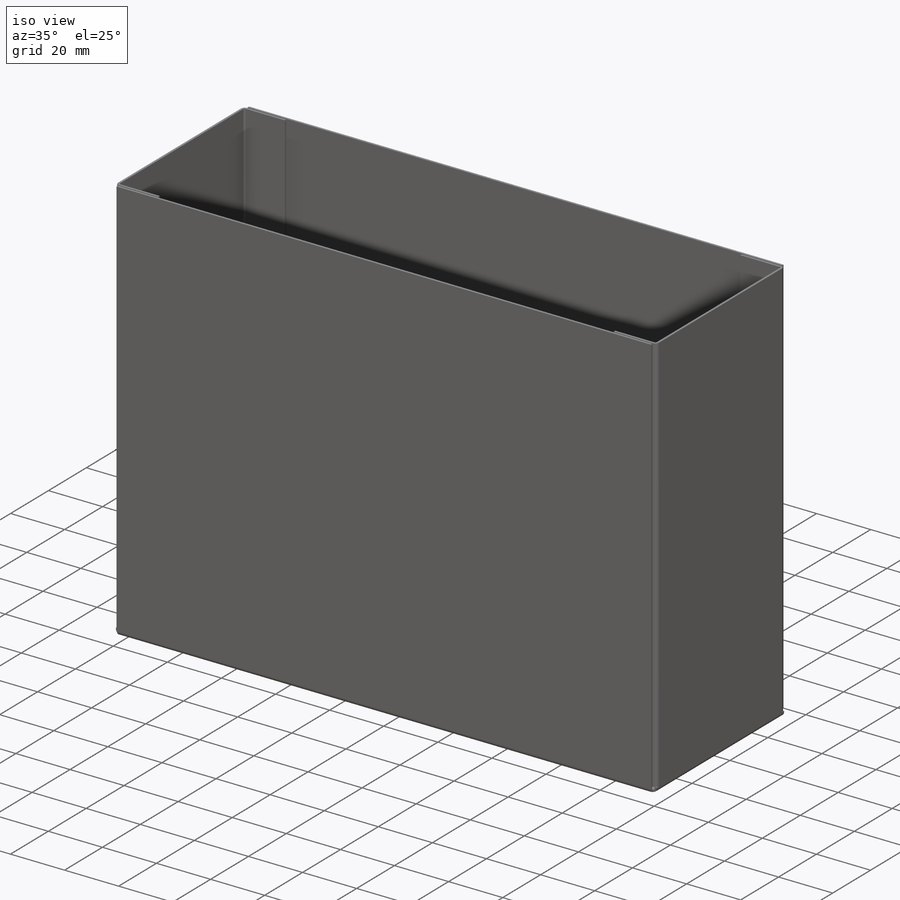
[diagram: iso view]
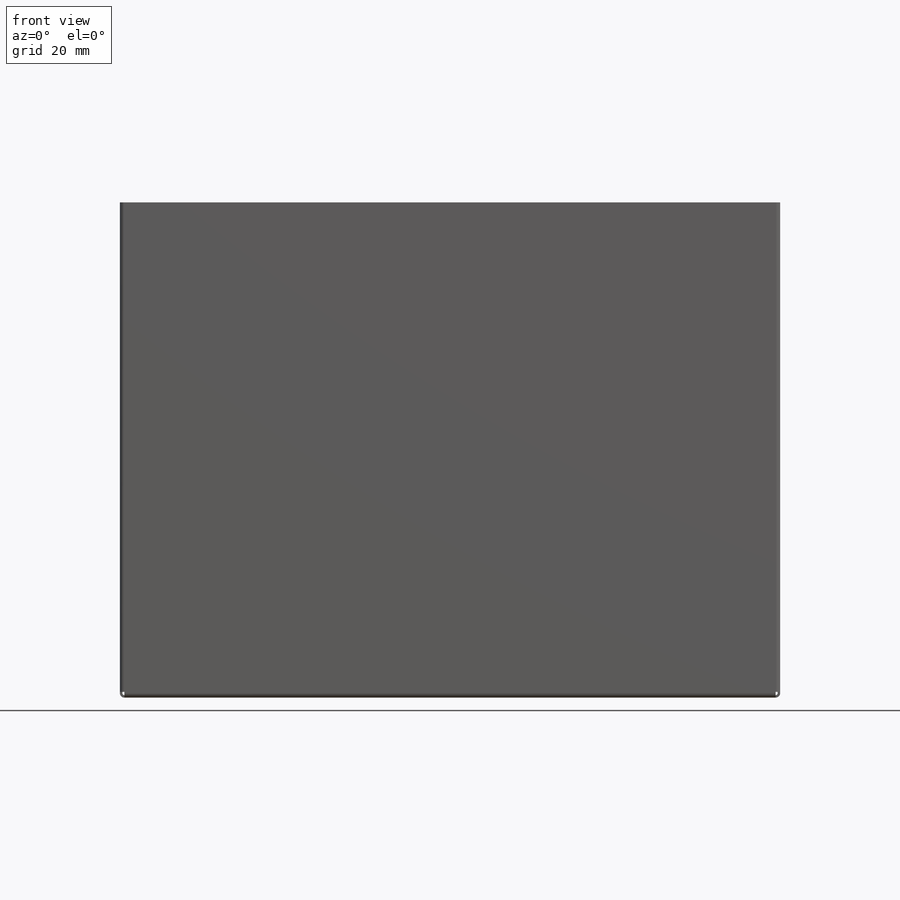
[diagram: front view]
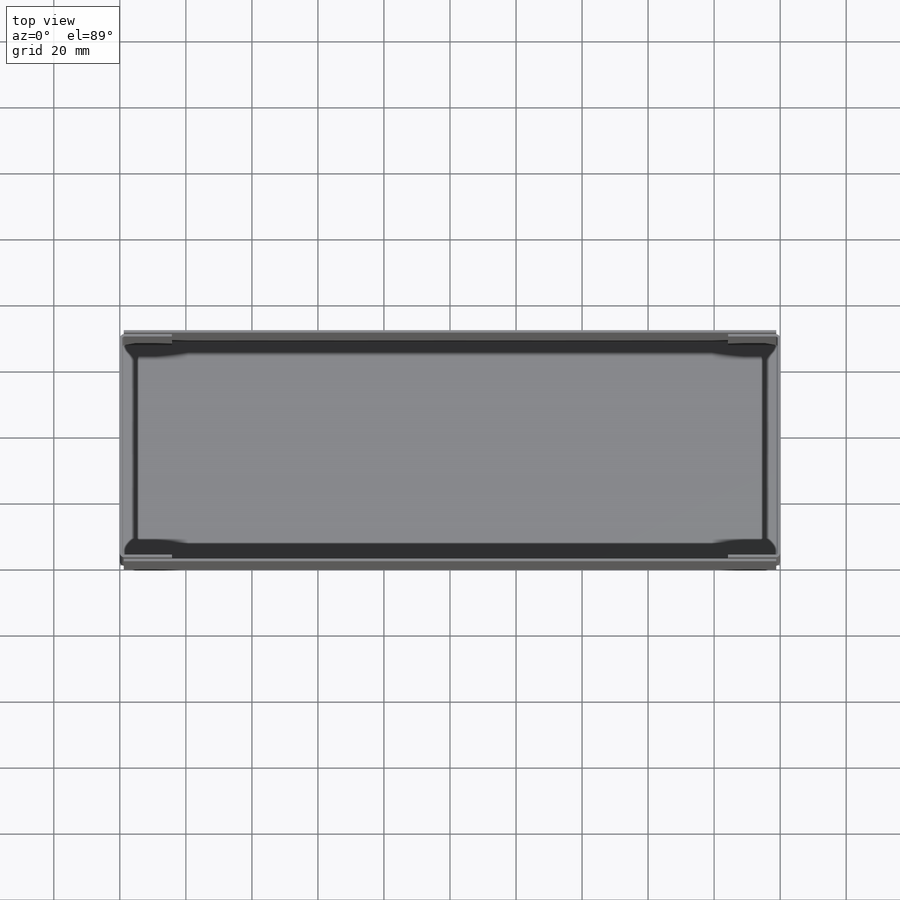
[diagram: top view]
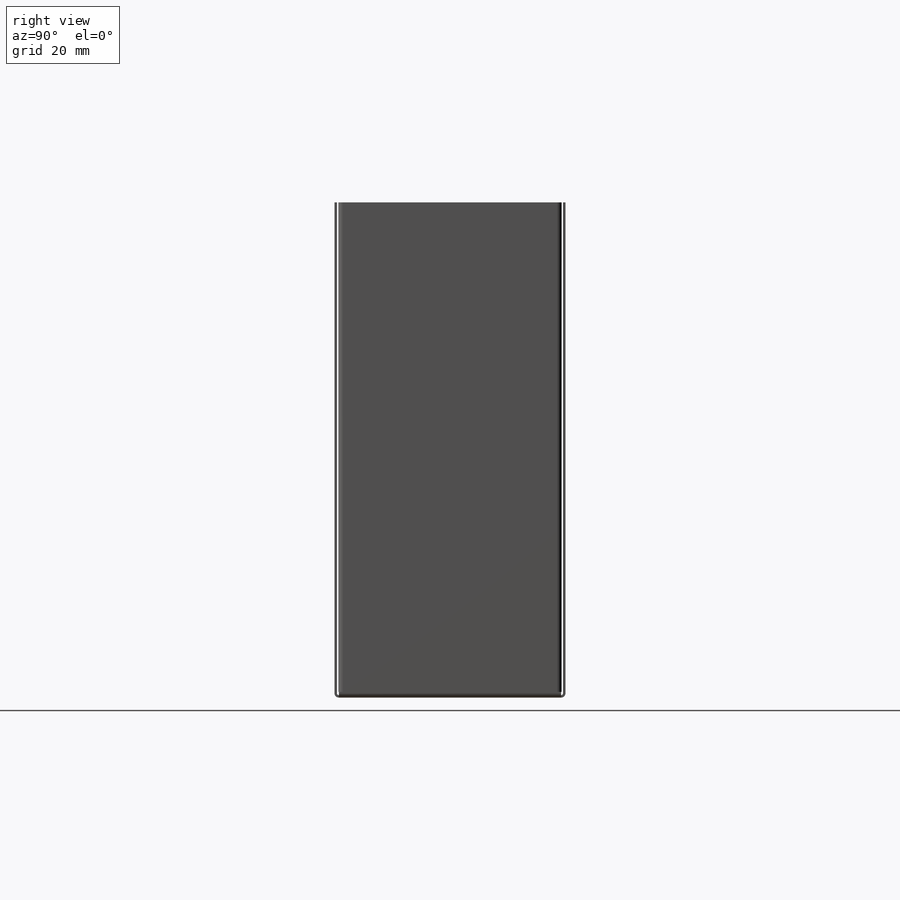
[diagram: right view]
SOLIDWORKS PART (.sldprt)
format: sldprt  version: not decoded by parser v0  size: 361,472 bytes
history: native  units: mm
features: sketch x15, extrude x5, sheet_metal_op x5, plane x2, mirror x2, material x1, cut_extrude x1 + 30 further entries (+12 scaffold rows collapsed; 5 parser-record rows omitted)
feature tree (78):
  scaffold x12  (default folders/planes/origin — collapsed)
  material  "Material <not specified>"
  sketch  "Sketch1"  dims[c1.D1=~59.610307mm c1.D2=~92.163453mm c2.D1=200.0mm c2.D2=70.0mm]
  extrude  "Boss-Extrude1"  Depth=150mm SharpBend2=0 SharpBend3=0 SharpBend4=0
  sketch  "Sketch8"  dims[c1.EdgeBend2=0.0 c1.D1=0.6mm c1.D4=90.0deg c1.D5=5.0 c1.D8=0.3mm c1.D9=0.3mm c2.D1=0.6mm c2.D2=500.0mm c2.D3=0.0mm c2.D6=10.0mm c2.D7=15.0mm]
  plane  "Plane1"
  plane  "Plane2"
  mirror  "Mirror1"  MirrorBend5=0
  mirror  "Mirror2"  MirrorBend6=0 MirrorBend7=0
  sketch  "Sketch9"  dims[c1.D1=20.0mm c1.D2=130.0mm c2.D2=50.0deg]
  cut_extrude  "Cut-Extrude1"  [1 undecoded]
  sketch  "Bend-Lines1"
  sketch  "Bounding-Box1"
  sheet_metal_op  "Sheet-Metal(2)"
  "Flat-Pattern(2)"
  sketch  "Bend-Lines2"
  sketch  "Bounding-Box2"
  parser-record x5  (decoder bookkeeping rows leaked as tree rows — omitted from the tree; the rows remain in map.json)
  "Flatten-<SharpBend2>1"
  "Flatten-<SharpBend3>1"
  "Flatten-<SharpBend4>1"
  extrude  "Sheet-Metal(3)"  Depth=0.6mm
  sheet_metal_op  "Flat-Pattern(2)"
  sketch  "Bend-Lines2"
  sketch  "Bounding-Box2"
  "Flatten-<SharpBend1>1"
  "Flatten-<SharpBend2>1"
  "Flatten-<SharpBend3>1"
  "Flatten-<EdgeBend2>1"
  "Flatten-<SharpBend4>2"
  extrude  "Sheet-Metal(4)"  Depth=0.6mm
  sheet_metal_op  "Flat-Pattern(2)"
  sketch  "Bend-Lines2"
  sketch  "Bounding-Box2"
  "Flatten-<SharpBend1>1"
  "Flatten-<SharpBend2>1"
  "Flatten-<SharpBend3>1"
  "Flatten-<EdgeBend2>2"
  "Flatten-<MirrorBend5>1"
  "Flatten-<SharpBend4>3"
  extrude  "Sheet-Metal(5)"  Depth=0.6mm
  sheet_metal_op  "Flat-Pattern(2)"
  sketch  "Bend-Lines2"
  sketch  "Bounding-Box2"
  "Flatten-<SharpBend1>1"
  "Flatten-<SharpBend2>1"
  "Flatten-<SharpBend3>1"
  "Flatten-<EdgeBend2>3"
  "Flatten-<MirrorBend5>2"
  "Flatten-<MirrorBend6>1"
  "Flatten-<MirrorBend7>1"
  "Flatten-<SharpBend4>4"
  extrude  "Sheet-Metal(6)"  Depth=0.6mm
  sheet_metal_op  "Flat-Pattern(2)"
  sketch  "Bend-Lines2"
  sketch  "Bounding-Box2"
  "Flatten-<SharpBend1>1"
  "Flatten-<SharpBend2>1"
  "Flatten-<SharpBend3>1"
  "Flatten-<EdgeBend2>3"
  "Flatten-<MirrorBend5>2"
  "Flatten-<MirrorBend6>1"
  "Flatten-<MirrorBend7>1"
decode coverage: 10 of 28 modeling features carry decoded parameters; 30 rows unclassified (native names shown)
note: ~ marks probable driven/reference dimensions
note: 1 parameter value undecoded
note: suppression state not decoded; provenance and decode notes live in map.json
